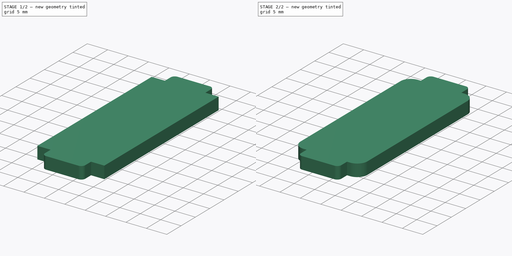
[diagram: build sequence overview — one tinted view per stage of 2, left to right]
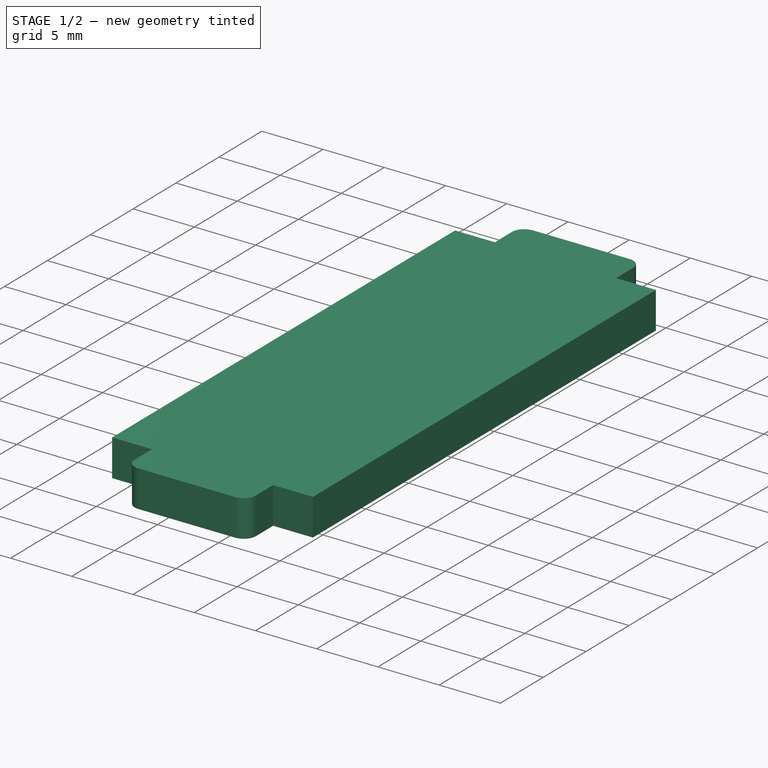
[diagram: stage 1 of 2 — iso view after this stage's code; geometry added in this stage tinted green]
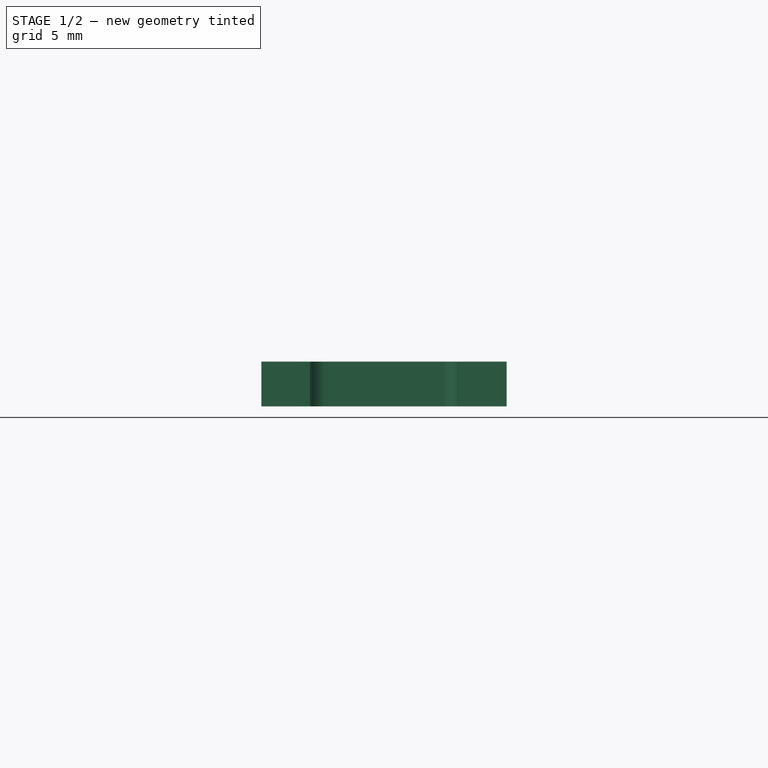
[diagram: stage 1 of 2 — front view after this stage's code; geometry added in this stage tinted green]
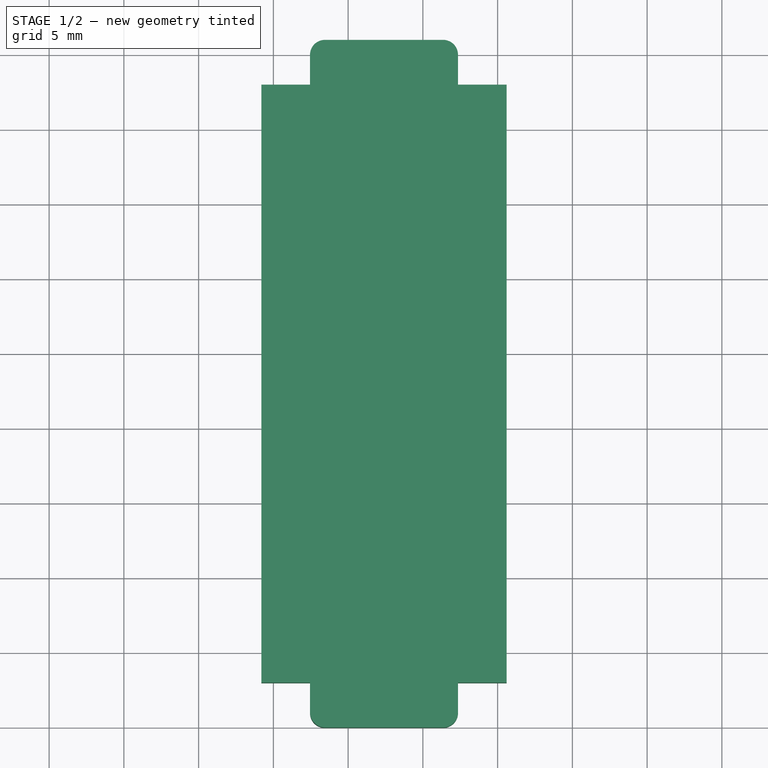
[diagram: stage 1 of 2 — top view after this stage's code; geometry added in this stage tinted green]
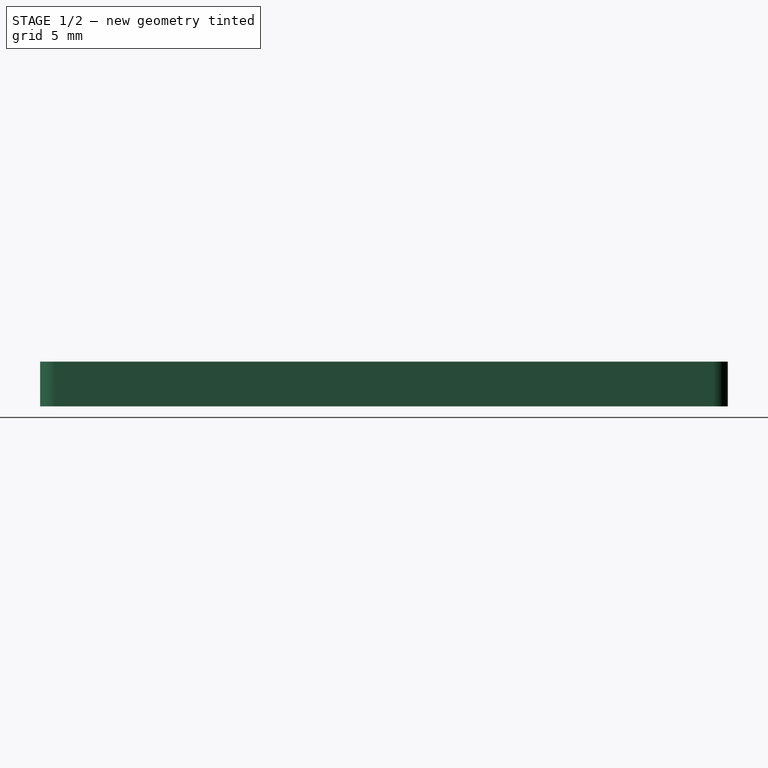
[diagram: stage 1 of 2 — right view after this stage's code; geometry added in this stage tinted green]
FCSTD DOCUMENT
Label: weather_kit_side_right
objects: Part::Fillet×2, Sketcher::SketchObject×1, PartDesign::Pad×1, Drawing::FeatureViewPart×1, Drawing::FeaturePage×1
note: 5 computed .brp shape members not serialized (recipe doc carries the construction recipe); baked Part::Feature solids carry a one-line shape summary decoded from their .brp

FEATURE [Sketcher::SketchObject] Sketch
  sketch-geometry (12):
    g0: LineSegment StartX=25.599 StartY=32.9877 StartZ=0 EndX=25.599 EndY=-7.0123 EndZ=0
    g1: LineSegment StartX=12.449 StartY=35.9877 StartZ=0 EndX=22.349 EndY=35.9877 EndZ=0
    g2: LineSegment StartX=22.349 StartY=35.9877 StartZ=0 EndX=22.349 EndY=32.9877 EndZ=0
    g3: LineSegment StartX=12.449 StartY=32.9877 StartZ=0 EndX=12.449 EndY=35.9877 EndZ=0
    g4: LineSegment StartX=22.349 StartY=-7.0123 StartZ=0 EndX=22.349 EndY=-10.0123 EndZ=0
    g5: LineSegment StartX=22.349 StartY=-10.0123 StartZ=0 EndX=12.449 EndY=-10.0123 EndZ=0
    g6: LineSegment StartX=12.449 StartY=-10.0123 StartZ=0 EndX=12.449 EndY=-7.0123 EndZ=0
    g7: LineSegment StartX=12.449 StartY=-7.0123 StartZ=0 EndX=9.19898 EndY=-7.0123 EndZ=0
    g8: LineSegment StartX=22.349 StartY=-7.0123 StartZ=0 EndX=25.599 EndY=-7.0123 EndZ=0
    g9: LineSegment StartX=22.349 StartY=32.9877 StartZ=0 EndX=25.599 EndY=32.9877 EndZ=0
    g10: LineSegment StartX=9.19898 StartY=32.9877 StartZ=0 EndX=12.449 EndY=32.9877 EndZ=0
    g11: LineSegment StartX=9.19898 StartY=-7.0123 StartZ=0 EndX=9.19898 EndY=32.9877 EndZ=0
  constraints (33):
    c: Vertical(g0)
    c: DistanceY(g0) = -40
    c: Coincident(g1,g2)
    c: Coincident(g3,g1)
    c: Horizontal(g1)
    c: Vertical(g2)
    c: Vertical(g3)
    c: Coincident(g4,g5)
    c: Coincident(g5,g6)
    c: Horizontal(g5)
    c: Vertical(g4)
    c: Vertical(g6)
    c: DistanceY(g4) = -3
    c: DistanceY(g2) = -3
    c: DistanceX(g1) = 9.9
    c: DistanceX(g5) = -9.9
    c: DistanceY(g6,g0) = 0
    c: DistanceY(g2,g0) = 0
    c: DistanceX(g2,g0) = 3.25
    c: DistanceX(g0,g4) = -3.25
    c: Coincident(g7,g6)
    c: Horizontal(g7)
    c: Coincident(g8,g4)
    c: Coincident(g8,g0)
    c: Horizontal(g8)
    c: Coincident(g9,g2)
    c: Coincident(g9,g0)
    c: Coincident(g10,g3)
    c: Horizontal(g10)
    c: DistanceX(g7) = -3.25
    c: Coincident(g11,g7)
    c: Coincident(g11,g10)
    c: Vertical(g11)
FEATURE [PartDesign::Pad] Pad
  Length = 3
  Length2 = 100
  Sketch = -> Sketch
  Type = 0
FEATURE [Part::Fillet] Fillet
  Base = -> Pad
  Edges = 4 edges r=1: [Edge8,Edge11,Edge23,Edge26]
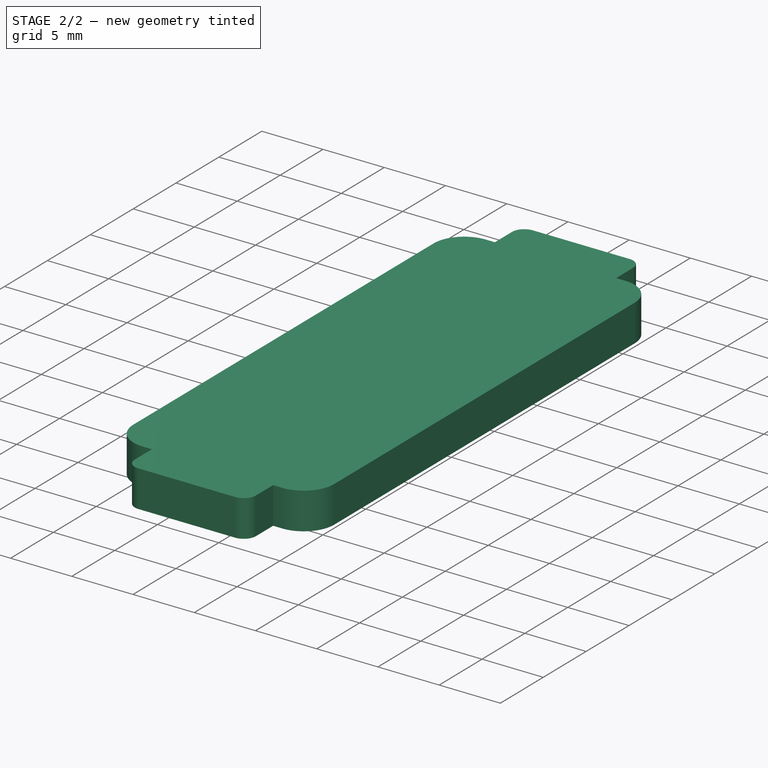
[diagram: stage 2 of 2 — iso view after this stage's code; geometry added in this stage tinted green]
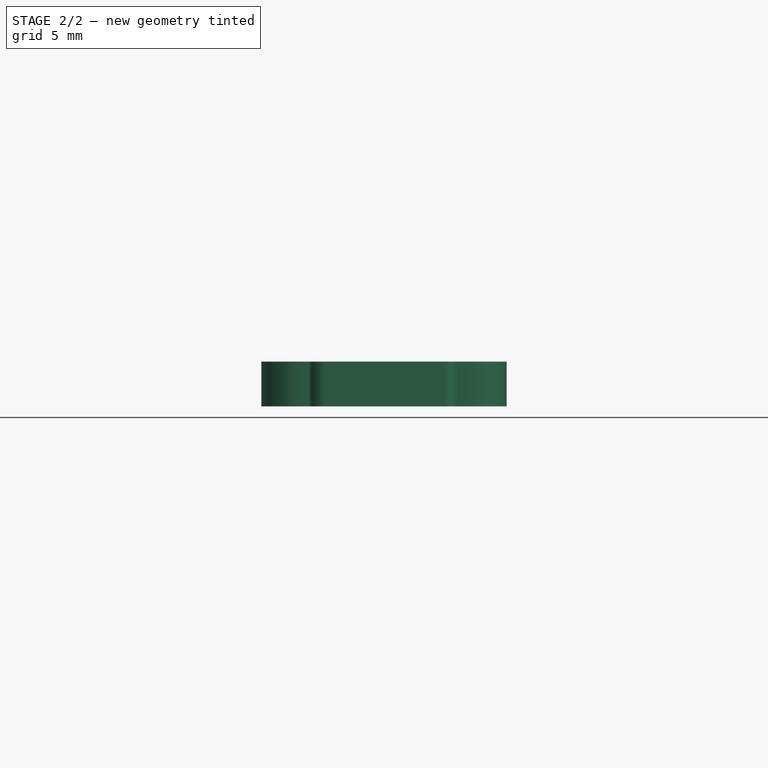
[diagram: stage 2 of 2 — front view after this stage's code; geometry added in this stage tinted green]
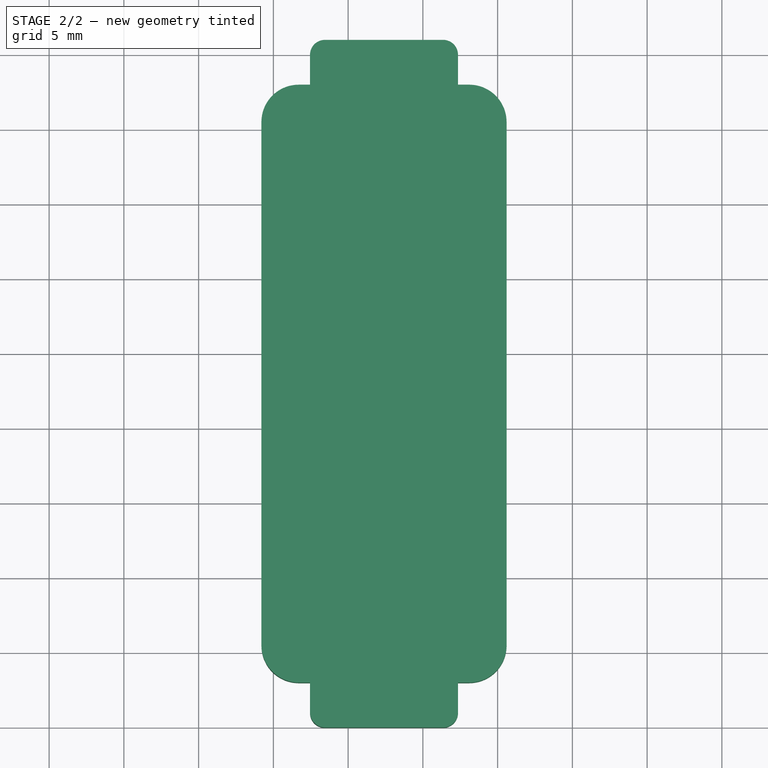
[diagram: stage 2 of 2 — top view after this stage's code; geometry added in this stage tinted green]
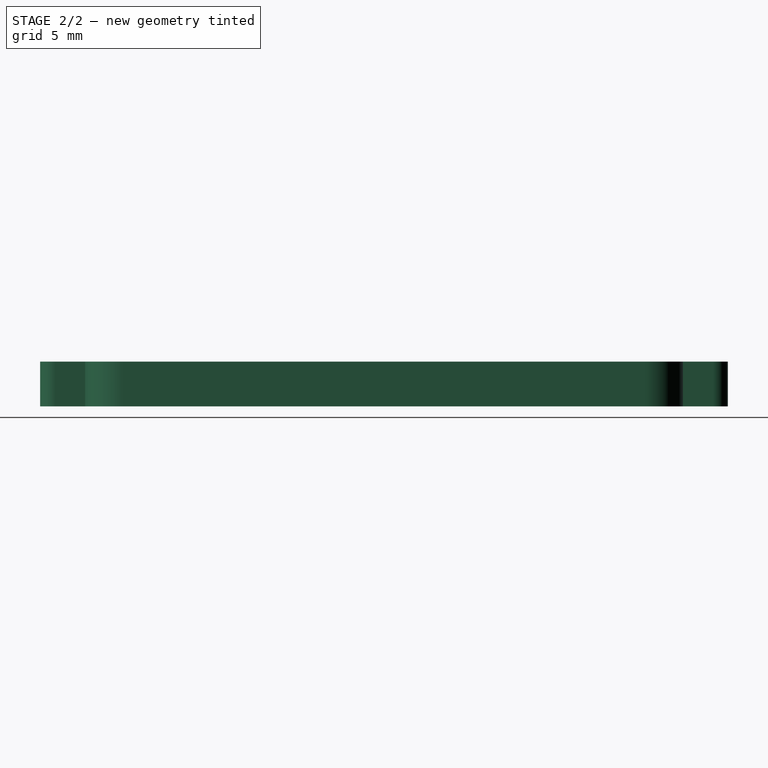
[diagram: stage 2 of 2 — right view after this stage's code; geometry added in this stage tinted green]
FEATURE [Part::Fillet] Fillet001
  Base = -> Fillet
  Edges = 4 edges r=2.5: [Edge22,Edge38,Edge43,Edge45]
  Placement = pos=(200,100,0) rot=(0,0,1;0rad)
FEATURE [Drawing::FeatureViewPart] View
  Direction = (0,0,1)
  LineWidth = 0.35
  Rotation = 0
  ShowHiddenLines = false
  ShowSmoothLines = false
  Source = -> Fillet001
  Tolerance = 0.05
  ViewResult = <g id="View"    transform="rotate(0,10,10) translate(10,10) scale(1,1)"   > <g   stroke="rgb(0, 0, 0)"    stroke-width="0.35"    stroke-linecap="butt"    stroke-linejoin="miter"    fill="none"   > <path id= "1" d=" M 222.349 132.988 L 223.099 132.988 " /> <path d="M223.099 132.988 A2.5 2.5 0 0 0 225.599 130.488" /><path id= "3" d=" M 222.349 132.988 L 222.349 134.988 " /> <path id= "4" d=" M 225.599 95.4877 L 225.599 130.488 " /> <path d="M222.349 134.988 A1 1 0 0 1 221.349 135.988" /><path d="M225.599 95.4877 A2.5 2.5 0 0 0 223.099 92.9877" /><path id= "7" d=" M 221.349 135.988 L 213.449 135.988 " /> <path id= "8" d=" M 222.349 92.9877 L 223.099 92.9877 " /> <path d="M213.449 135.988 A1 1 0 0 1 212.449 134.988" /><path id= "10" d=" M 222.349 90.9877 L 222.349 92.9877 " /> <path id= "11" d=" M 212.449 134.988 L 212.449 132.988 " /> <path d="M222.349 90.9877 A1 1 0 0 0 221.349 89.9877" /><path id= "13" d=" M 212.449 132.988 L 211.699 132.988 " /> <path id= "14" d=" M 213.449 89.9877 L 221.349 89.9877 " /> <path d="M211.699 132.988 A2.5 2.5 0 0 1 209.199 130.488" /><path d="M213.449 89.9877 A1 1 0 0 0 212.449 90.9877" /><path id= "17" d=" M 209.199 130.488 L 209.199 95.4877 " /> <path id= "18" d=" M 212.449 92.9877 L 212.449 90.9877 " /> <path d="M209.199 95.4877 A2.5 2.5 0 0 1 211.699 92.9877" /><path id= "20" d=" M 211.699 92.9877 L 212.449 92.9877 " /> </g> </g> 
  X = 10
  Y = 10
FEATURE [Drawing::FeaturePage] Page
  EditableTexts = AUTHOR NAME | CREATION DATE | SUPERVISOR NAME | CHECK DATE | SCALE | WEIGHT | NUMBER | SHEET | TITLE | SUBTITLE
  Group = -> [View]
  Template = <path>
note: 1 file-system path scrubbed to <path> (originals preserved in the JSON sidecar)
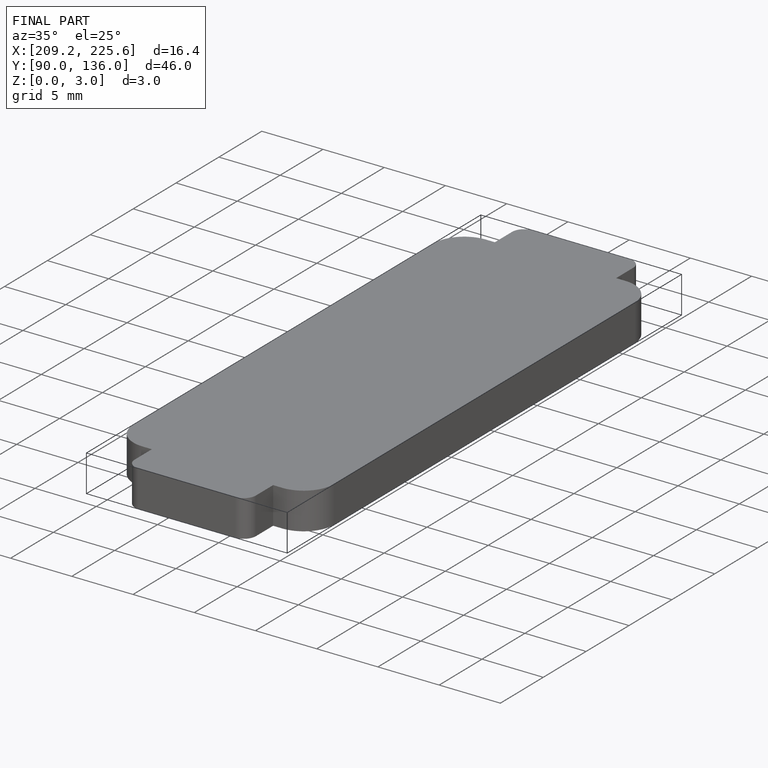
[diagram: finished part — iso view with bounding-box wireframe]
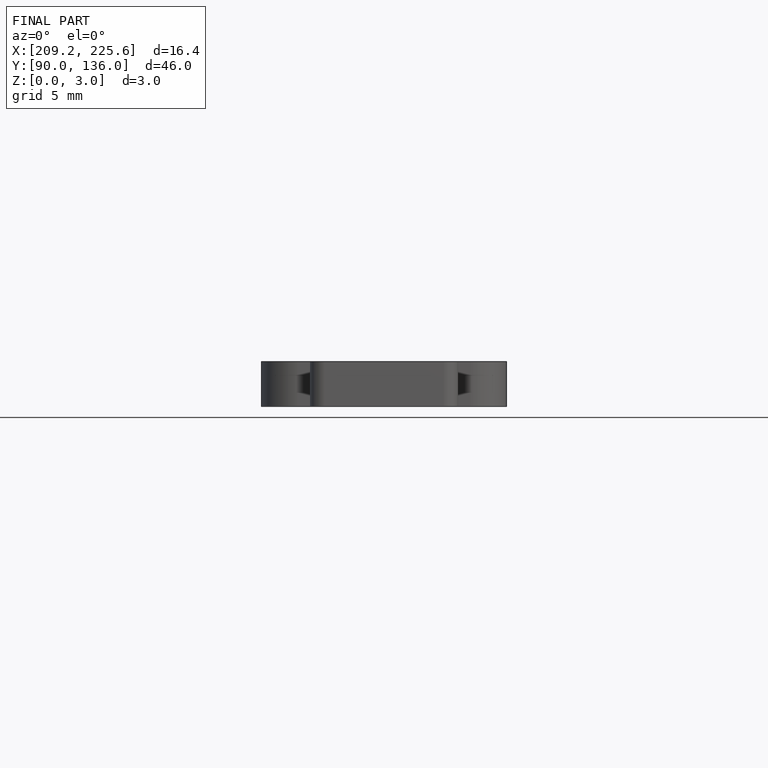
[diagram: finished part — front view with bounding-box wireframe]
